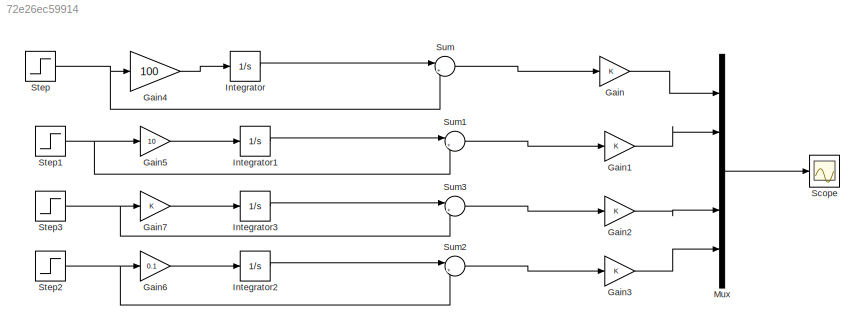
MODEL slx_72e26ec59914
KIND model
CONFIG AbsTol = auto
CONFIG EnableMultiTasking = off
CONFIG FixedStep = auto
CONFIG MaxStep = auto
CONFIG MinStep = auto
CONFIG RelTol = 1e-3
CONFIG SampleTimeConstraint = Unconstrained
CONFIG SolverName = VariableStepAuto
CONFIG StartTime = 0.0
CONFIG StopTime = 10.0
BLOCK [Gain] Gain
BLOCK [Gain] Gain1
BLOCK [Gain] Gain2
BLOCK [Gain] Gain3
BLOCK [Gain] Gain4
  Gain = 100
BLOCK [Gain] Gain5
  Gain = 10
BLOCK [Gain] Gain6
  Gain = 0.1
BLOCK [Gain] Gain7
BLOCK [Integrator] Integrator
BLOCK [Integrator] Integrator1
BLOCK [Integrator] Integrator2
BLOCK [Integrator] Integrator3
BLOCK [Mux] Mux
  DisplayOption = bar
  Inputs = 5
BLOCK [Scope] Scope
  Floating = off
  NumInputPorts = 1
  ScopeSpecificationString = Simulink.scopes.TimeScopeBlockCfg('CurrentConfiguration', extmgr.ConfigurationSet(extmgr.Configuration('Core','General UI',true),extmgr.Configuration('Core','Source UI',true),extmgr.Configuration('Sources','WiredSimulink',true),extmgr.Configuration('Visuals','Time Domain',true,'SerializedDisplays',{struct('MinYLimReal','-1.37453','MaxYLimReal','12.37077','YLabelReal','','MinYLimMag','0.00000','Max...<+1426ch>
BLOCK [Step] Step
  SampleTime = 0
  Time = 0
BLOCK [Step] Step1
  SampleTime = 0
  Time = 0
BLOCK [Step] Step2
  SampleTime = 0
  Time = 0
BLOCK [Step] Step3
  SampleTime = 0
  Time = 0
BLOCK [Sum] Sum
  Inputs = |++
BLOCK [Sum] Sum1
  Inputs = |++
BLOCK [Sum] Sum2
  Inputs = |++
BLOCK [Sum] Sum3
  Inputs = |++
LINE Gain1:1 -> Mux:2
LINE Gain2:1 -> Mux:4
LINE Gain3:1 -> Mux:5
LINE Gain4:1 -> Integrator:1
LINE Gain5:1 -> Integrator1:1
LINE Gain6:1 -> Integrator2:1
LINE Gain7:1 -> Integrator3:1
LINE Gain:1 -> Mux:1
LINE Integrator1:1 -> Sum1:1
LINE Integrator2:1 -> Sum2:1
LINE Integrator3:1 -> Sum3:1
LINE Integrator:1 -> Sum:1
LINE Mux:1 -> Scope:1
NET Step1:1 -> Gain5:1, Sum1:2
NET Step2:1 -> Gain6:1, Sum2:2
NET Step3:1 -> Gain7:1, Sum3:2
NET Step:1 -> Gain4:1, Sum:2
LINE Sum1:1 -> Gain1:1
LINE Sum2:1 -> Gain3:1
LINE Sum3:1 -> Gain2:1
LINE Sum:1 -> Gain:1
note: NET lines group one-source signal fan-out (src -> all destinations, sorted); 1:1 wires keep LINE
